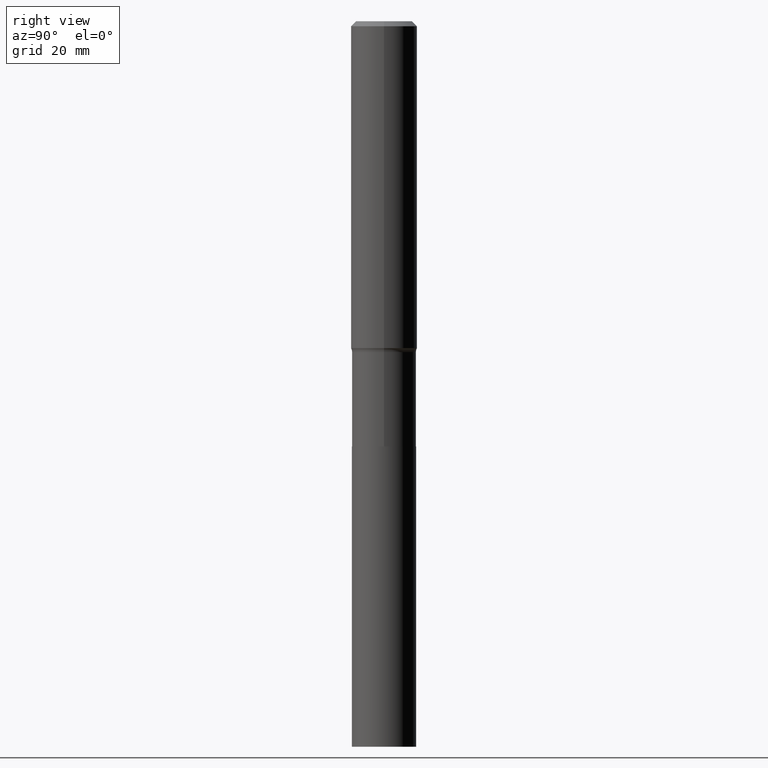
[diagram: clean part render]
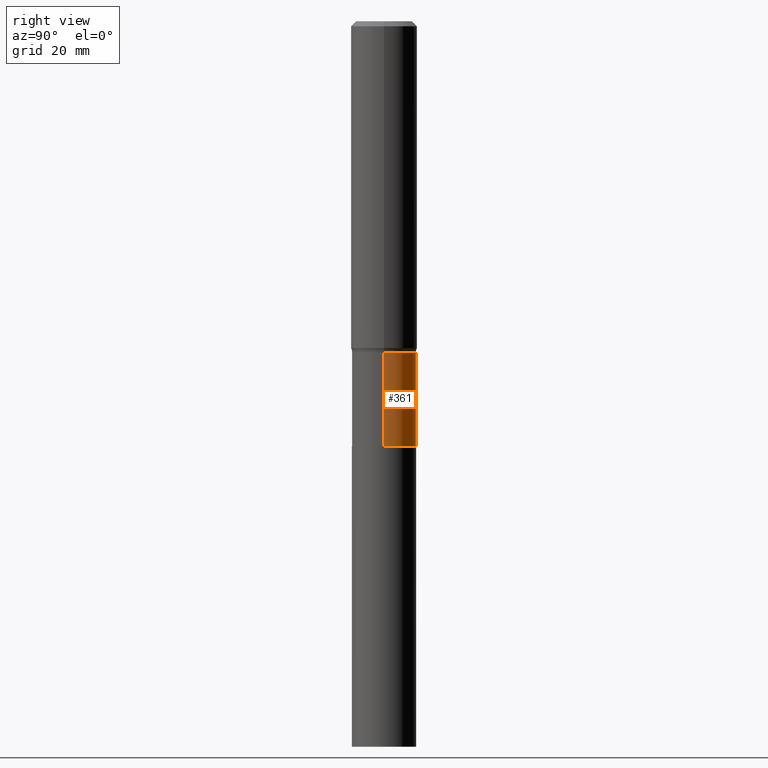
[diagram: same view with one face highlighted and labeled with its STEP entity id]
A machine part, right view. The second image highlights one B-rep face of the part: STEP entity #361.
In plain terms, the highlighted cylindrical surface (edge-blend (fillet) strip) has radius 7.7495 mm, axis along (-0, 0, 1).
Its self-contained STEP definition (entity closure, byte-faithful):
#9 = VERTEX_POINT ( 'NONE', #286 ) ;
#31 = CARTESIAN_POINT ( 'NONE',  ( 0.000000000000000000, 0.000000000000000000, 0.000000000000000000 ) ) ;
#33 = ORIENTED_EDGE ( 'NONE', *, *, #381, .T. ) ;
#52 = CARTESIAN_POINT ( 'NONE',  ( 0.3050999999999999268, -2.130501912962079080E-15, 1.487721534295339594E-29 ) ) ;
#62 = LINE ( 'NONE', #116, #238 ) ;
#64 = CARTESIAN_POINT ( 'NONE',  ( 0.3050999999999998158, -1.310178372400889783E-14, -3.142300000000000537 ) ) ;
#65 = CARTESIAN_POINT ( 'NONE',  ( -0.3050999999999998158, -1.036585382337506044E-14, -3.142300000000000537 ) ) ;
#68 = AXIS2_PLACEMENT_3D ( 'NONE', #390, #297, #203 ) ;
#93 = AXIS2_PLACEMENT_3D ( 'NONE', #126, #373, #187 ) ;
#101 = EDGE_CURVE ( 'NONE', #276, #357, #198, .T. ) ;
#103 = DIRECTION ( 'NONE',  ( -2.445468806185136597E-29, 3.491481338843145583E-15, 1.000000000000000000 ) ) ;
#116 = CARTESIAN_POINT ( 'NONE',  ( -0.3050999999999999268, 2.167865886804065147E-15, -1.500767096036771338E-29 ) ) ;
#126 = CARTESIAN_POINT ( 'NONE',  ( 7.684396629675556742E-29, -1.097128181104681915E-14, -3.142300000000000537 ) ) ;
#156 = CARTESIAN_POINT ( 'NONE',  ( 0.3050999999999999268, -1.622665952227350913E-14, -4.037300000000000111 ) ) ;
#158 = VERTEX_POINT ( 'NONE', #65 ) ;
#172 = DIRECTION ( 'NONE',  ( -2.445468806185136877E-29, 3.491481338843145188E-15, 1.000000000000000000 ) ) ;
#185 = FACE_OUTER_BOUND ( 'NONE', #277, .T. ) ;
#187 = DIRECTION ( 'NONE',  ( 1.000000000000000000, -6.982962677686266711E-15, 0.000000000000000000 ) ) ;
#198 = LINE ( 'NONE', #52, #463 ) ;
#203 = DIRECTION ( 'NONE',  ( 1.000000000000000000, -6.982962677686264344E-15, 0.000000000000000000 ) ) ;
#223 = DIRECTION ( 'NONE',  ( -2.445468806185136877E-29, 3.491481338843145188E-15, 1.000000000000000000 ) ) ;
#229 = ORIENTED_EDGE ( 'NONE', *, *, #254, .F. ) ;
#232 = CIRCLE ( 'NONE', #93, 0.3050999999999998158 ) ;
#238 = VECTOR ( 'NONE', #172, 39.37007874015748143 ) ;
#248 = AXIS2_PLACEMENT_3D ( 'NONE', #31, #103, #257 ) ;
#254 = EDGE_CURVE ( 'NONE', #357, #158, #232, .T. ) ;
#257 = DIRECTION ( 'NONE',  ( 1.000000000000000000, -6.982962677686265133E-15, 4.876176775795935793E-29 ) ) ;
#276 = VERTEX_POINT ( 'NONE', #156 ) ;
#277 = EDGE_LOOP ( 'NONE', ( #397, #33, #229, #338 ) ) ;
#286 = CARTESIAN_POINT ( 'NONE',  ( -0.3050999999999999823, -1.036585382337505728E-14, -4.037300000000000111 ) ) ;
#297 = DIRECTION ( 'NONE',  ( -2.445468806185136597E-29, 3.491481338843145583E-15, 1.000000000000000000 ) ) ;
#336 = CIRCLE ( 'NONE', #68, 0.3050999999999999268 ) ;
#338 = ORIENTED_EDGE ( 'NONE', *, *, #101, .F. ) ;
#343 = EDGE_CURVE ( 'NONE', #276, #9, #336, .T. ) ;
#357 = VERTEX_POINT ( 'NONE', #64 ) ;
#358 = CYLINDRICAL_SURFACE ( 'NONE', #248, 0.3050999999999999268 ) ;
#361 = ADVANCED_FACE ( 'NONE', ( #185 ), #358, .T. ) ;
#373 = DIRECTION ( 'NONE',  ( -2.445468806185136597E-29, 3.491481338843145583E-15, 1.000000000000000000 ) ) ;
#381 = EDGE_CURVE ( 'NONE', #9, #158, #62, .T. ) ;
#390 = CARTESIAN_POINT ( 'NONE',  ( 9.873091211211252113E-29, -1.409615760931143202E-14, -4.037300000000000111 ) ) ;
#397 = ORIENTED_EDGE ( 'NONE', *, *, #343, .T. ) ;
#463 = VECTOR ( 'NONE', #223, 39.37007874015748143 ) ;